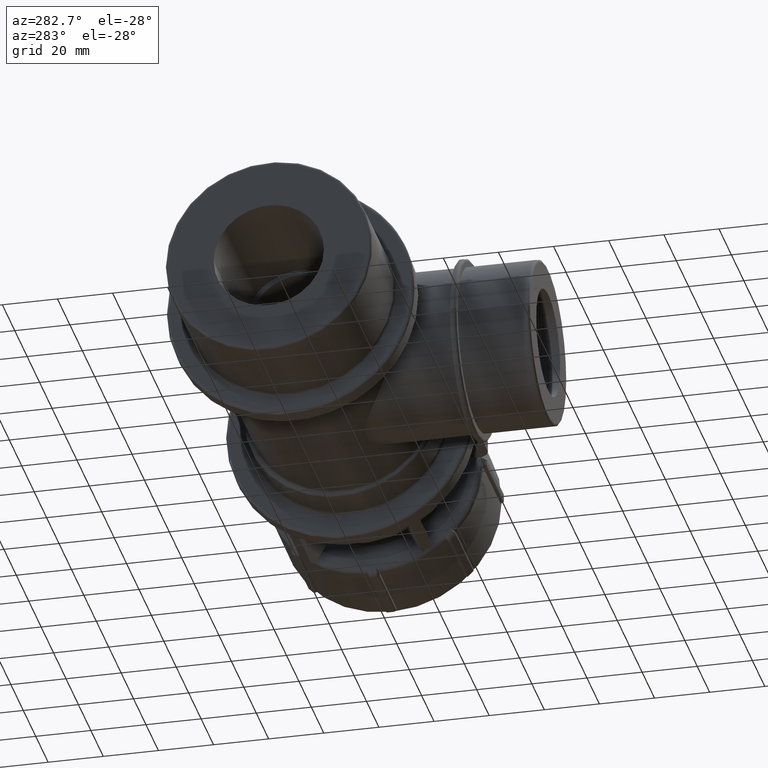
[diagram: clean part render]
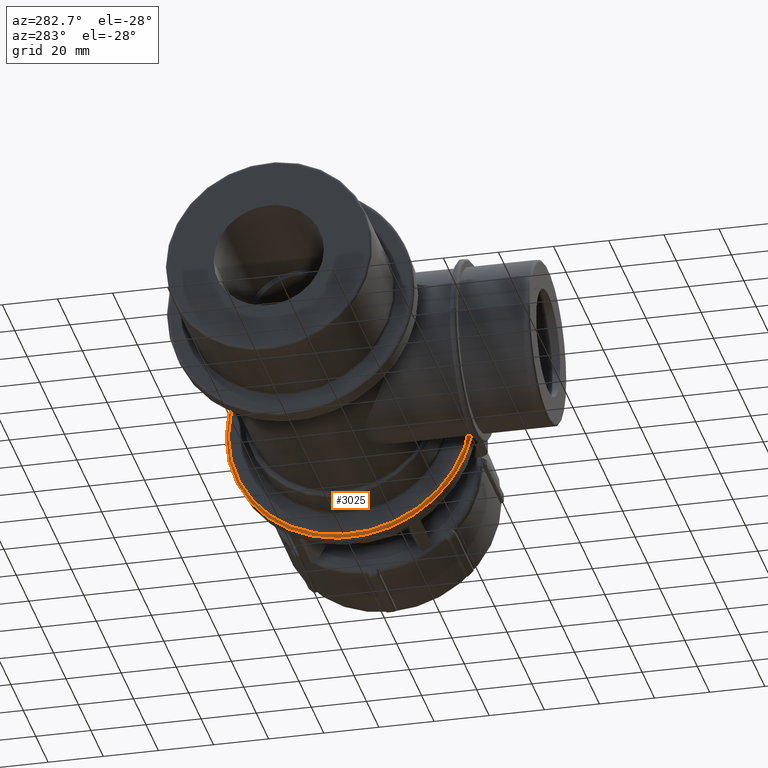
[diagram: same view with one face highlighted and labeled with its STEP entity id]
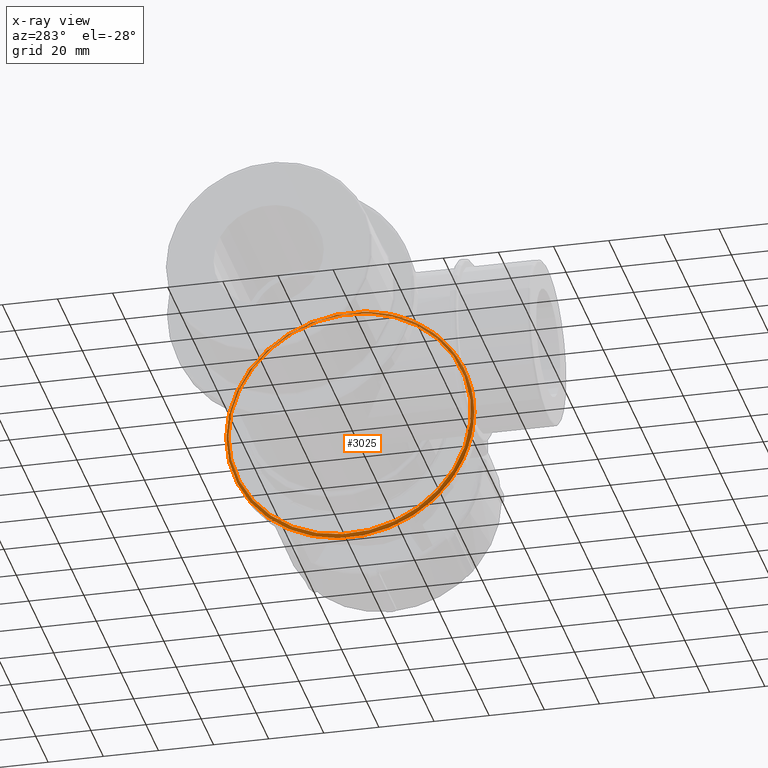
[diagram: x-ray of the same camera — body ghosted, the highlighted face saturated]
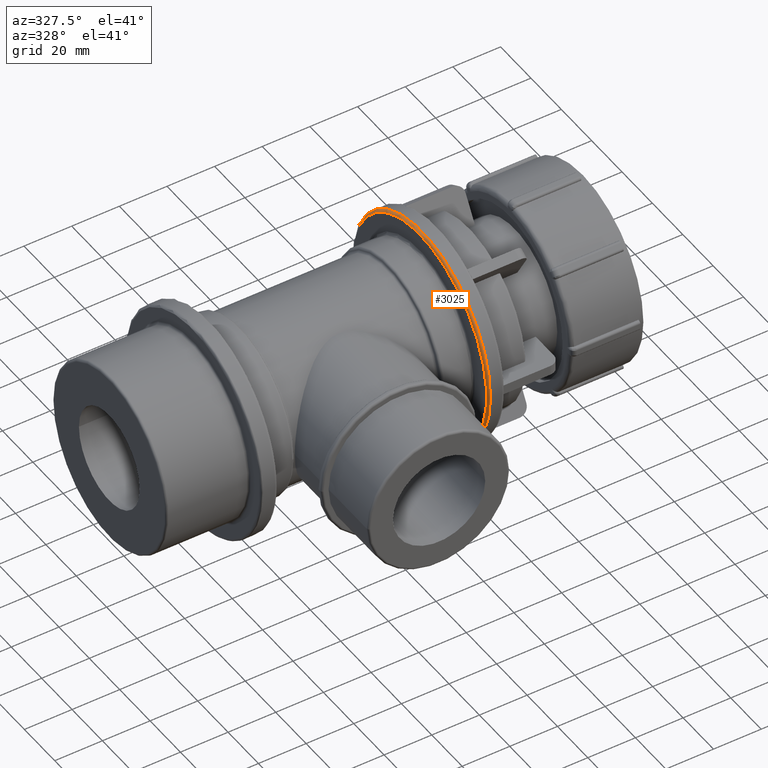
[diagram: same view with one face highlighted and labeled with its STEP entity id]
A machine part, auxiliary view. The second image highlights one B-rep face of the part: STEP entity #3025.
The next image is the same camera in x-ray: the body ghosted, the highlighted face saturated — about 36% of this face is hidden behind the body in this view.
A second angle (auxiliary view) of the same face is appended — the face is thin or edge-on in the first view.
In plain terms, the highlighted toroidal blend (fillet) surface has major radius 44 mm and minor (blend) radius 1 mm.
Its self-contained STEP definition (entity closure, byte-faithful):
#530=CIRCLE('',#3265,44.);
#531=CIRCLE('',#3267,45.);
#723=TOROIDAL_SURFACE('',#3266,44.,1.);
#759=FACE_BOUND('',#1052,.T.);
#818=FACE_OUTER_BOUND('',#1051,.T.);
#1051=EDGE_LOOP('',(#2105));
#1052=EDGE_LOOP('',(#2106));
#1355=VERTEX_POINT('',#4749);
#1356=VERTEX_POINT('',#4752);
#1649=EDGE_CURVE('',#1355,#1355,#530,.T.);
#1650=EDGE_CURVE('',#1356,#1356,#531,.T.);
#2105=ORIENTED_EDGE('',*,*,#1649,.T.);
#2106=ORIENTED_EDGE('',*,*,#1650,.T.);
#3025=ADVANCED_FACE('',(#818,#759),#723,.T.);
#3265=AXIS2_PLACEMENT_3D('',#4750,#3688,#3689);
#3266=AXIS2_PLACEMENT_3D('',#4751,#3690,#3691);
#3267=AXIS2_PLACEMENT_3D('',#4753,#3692,#3693);
#3688=DIRECTION('center_axis',(1.,0.,0.));
#3689=DIRECTION('ref_axis',(0.,-1.,1.83697019872103E-16));
#3690=DIRECTION('center_axis',(1.,0.,0.));
#3691=DIRECTION('ref_axis',(0.,0.,-1.));
#3692=DIRECTION('center_axis',(-1.,0.,0.));
#3693=DIRECTION('ref_axis',(0.,-1.,1.83697019872103E-16));
#4749=CARTESIAN_POINT('',(44.15,44.,-2.69422295812418E-15));
#4750=CARTESIAN_POINT('Origin',(44.15,0.,0.));
#4751=CARTESIAN_POINT('Origin',(45.15,0.,0.));
#4752=CARTESIAN_POINT('',(45.15,45.,-1.37772764904077E-14));
#4753=CARTESIAN_POINT('Origin',(45.15,0.,0.));